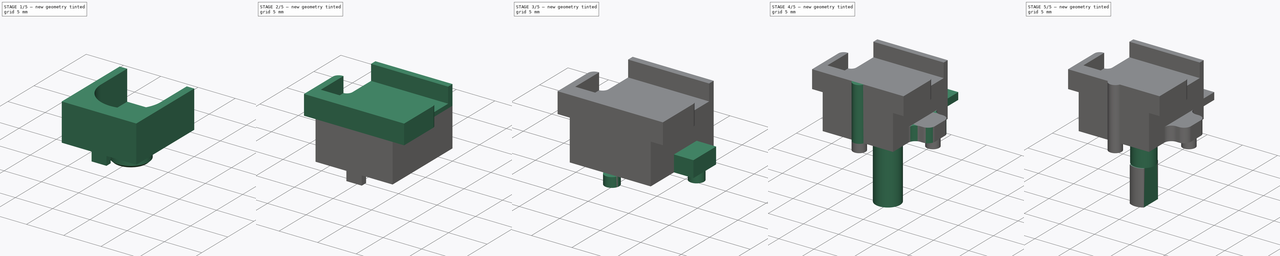
[diagram: build sequence overview — one tinted view per stage of 5, left to right]
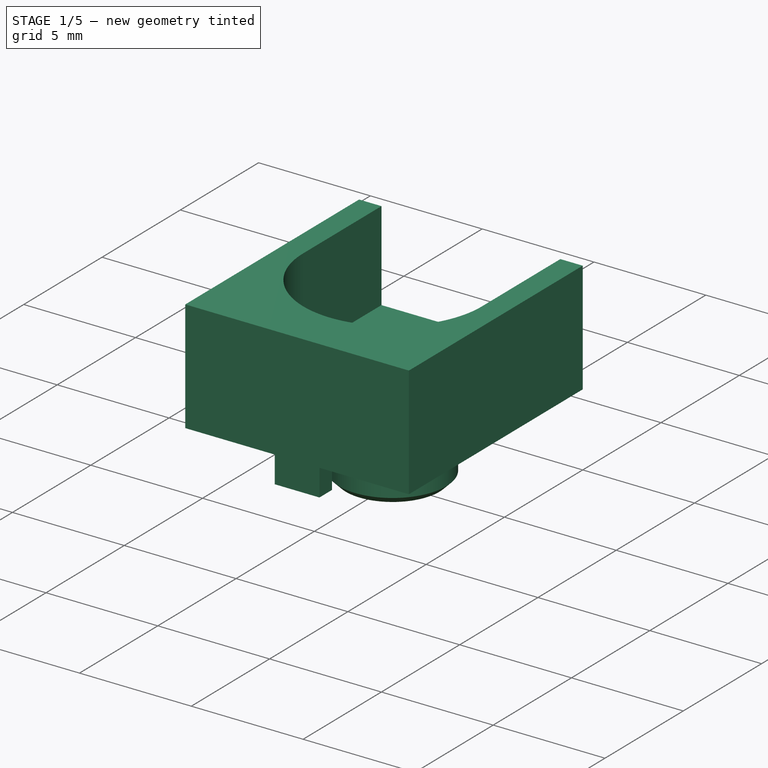
[diagram: stage 1 of 5 — iso view after this stage's code; geometry added in this stage tinted green]
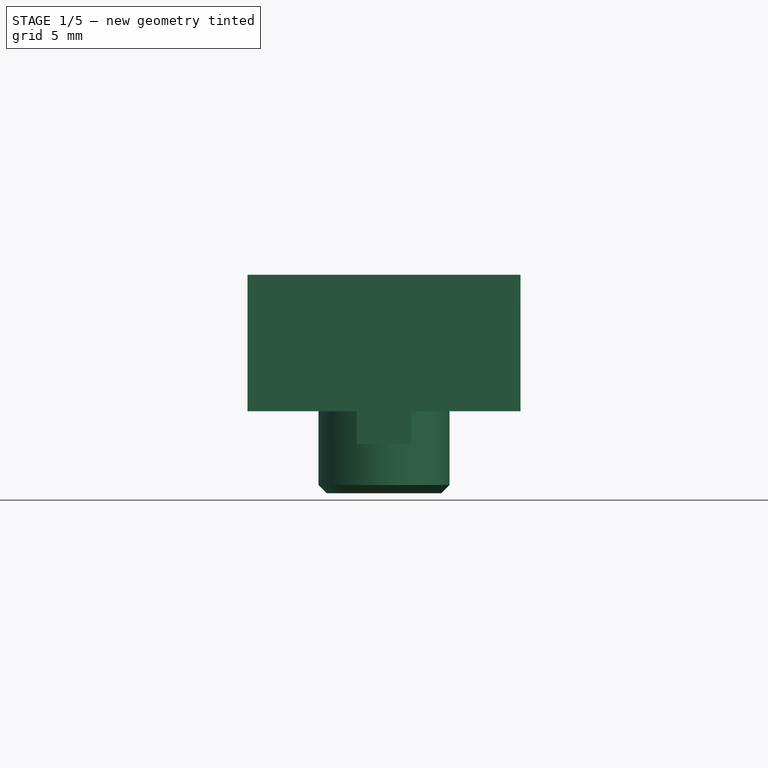
[diagram: stage 1 of 5 — front view after this stage's code; geometry added in this stage tinted green]
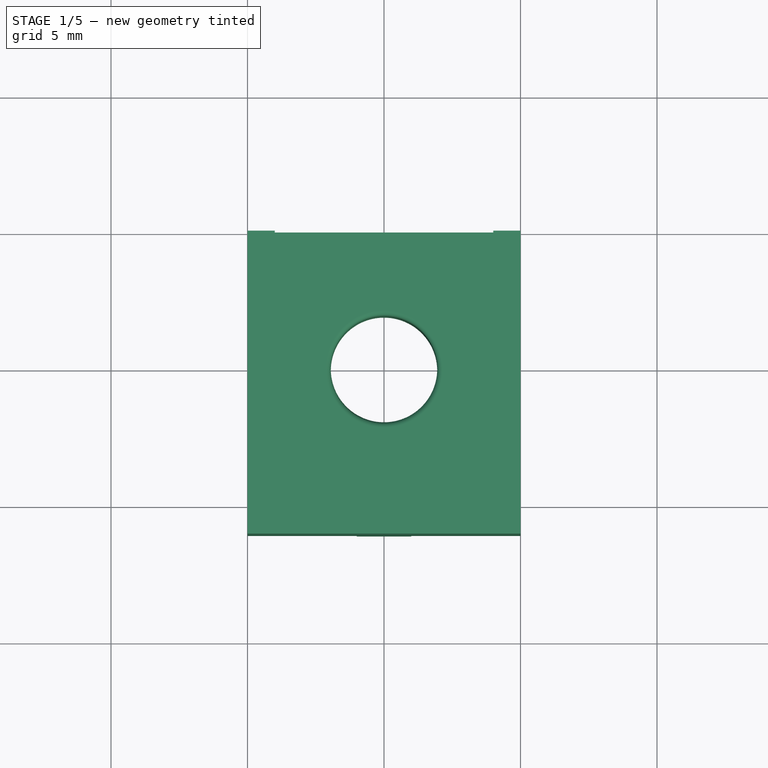
[diagram: stage 1 of 5 — top view after this stage's code; geometry added in this stage tinted green]
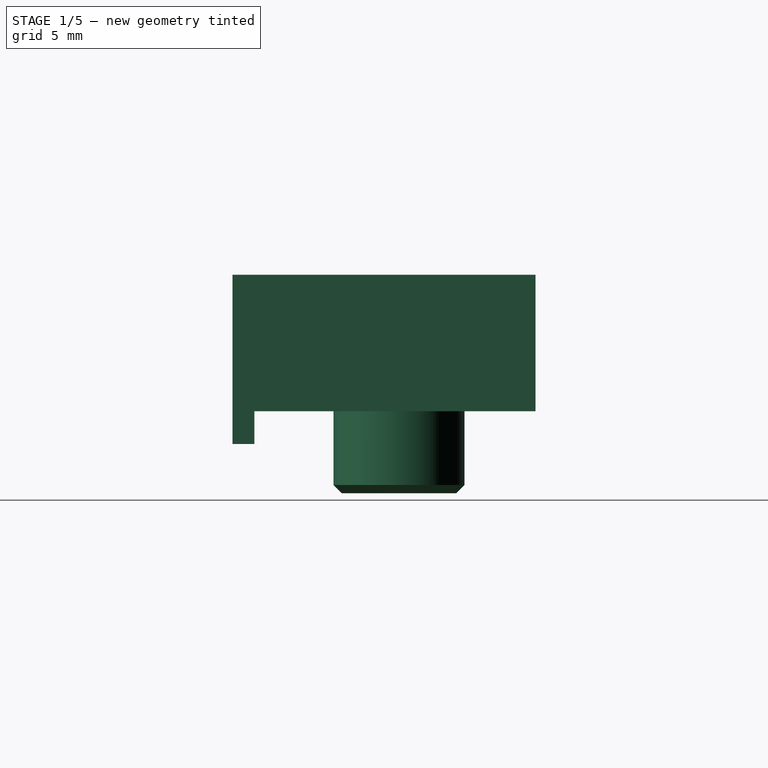
[diagram: stage 1 of 5 — right view after this stage's code; geometry added in this stage tinted green]
FCSTD DOCUMENT  (FreeCAD 0.18.3R)
Label: uMagEnc
License: All rights reserved
LicenseURL: http://en.wikipedia.org/wiki/All_rights_reserved
objects: Sketcher::SketchObject×20, PartDesign::Pad×14, PartDesign::Pocket×7, PartDesign::Mirrored×3, PartDesign::Body×3, PartDesign::Fillet×3, PartDesign::Chamfer×1
note: 72 computed .brp shape members not serialized (recipe doc carries the construction recipe); baked Part::Feature solids carry a one-line shape summary decoded from their .brp

FEATURE [Sketcher::SketchObject] Sketch004
  MapMode = 5
  Support = -> [XY_Plane001]
  expr: Constraints[2] = 5 / 2 - 0.1
  sketch-geometry (2):
    g0: Circle CenterX=0 CenterY=0 CenterZ=0 NormalX=0 NormalY=0 NormalZ=1 AngleXU=0 Radius=1.95
    g1: Circle CenterX=0 CenterY=0 CenterZ=0 NormalX=0 NormalY=0 NormalZ=1 AngleXU=0 Radius=2.4
  constraints (4):
    c: Radius(g0) = 1.95
    c: Coincident(g0,g-1)
    c: Radius(g1) = 2.4
    c: Coincident(g1,g0)
FEATURE [PartDesign::Pad] Pad002
  Length = 4
  Length2 = 100
  Profile = -> Sketch004
  Reversed = true
  Type = 0
  expr: Length = 3 + 1
FEATURE [Sketcher::SketchObject] Sketch005
  ExternalGeometry = -> [Pad002]
  MapMode = 5
  Support = -> [Pad002]
  sketch-geometry (5):
    g0: LineSegment StartX=-5 StartY=5 StartZ=0 EndX=5 EndY=5 EndZ=0
    g1: LineSegment StartX=5 StartY=5 StartZ=0 EndX=5 EndY=-6.1 EndZ=0
    g2: LineSegment StartX=5 StartY=-6.1 StartZ=0 EndX=-5 EndY=-6.1 EndZ=0
    g3: LineSegment StartX=-5 StartY=-6.1 StartZ=0 EndX=-5 EndY=5 EndZ=0
    g4: Circle CenterX=0 CenterY=0 CenterZ=0 NormalX=0 NormalY=0 NormalZ=1 AngleXU=0 Radius=1.95
  constraints (14):
    c: Coincident(g0,g1)
    c: Coincident(g1,g2)
    c: Coincident(g2,g3)
    c: Coincident(g3,g0)
    c: Horizontal(g0)
    c: Horizontal(g2)
    c: Vertical(g1)
    c: Vertical(g3)
    c: DistanceX(g-1,g1) = 5
    c: Distance(g1) = 11.1
    c: Distance(g0) = 10
    c: Coincident(g4,g-1)
    c: Equal(g4,g-3)
    c: DistanceY(g4,g0) = 5
FEATURE [PartDesign::Pad] Pad003
  BaseFeature = -> Pad002
  Length = 1
  Length2 = 100
  Profile = -> Sketch005
  Reversed = true
  Type = 0
FEATURE [Sketcher::SketchObject] Sketch006
  MapMode = 5
  Placement = pos=(0,0,-1) rot=(1,0,0;3.14159rad)
  Support = -> [Pad003]
  sketch-geometry (5):
    g0: LineSegment StartX=-1 StartY=5.3 StartZ=0 EndX=-1 EndY=6.1 EndZ=0
    g1: LineSegment StartX=-1 StartY=6.1 StartZ=0 EndX=1 EndY=6.1 EndZ=0
    g2: LineSegment StartX=1 StartY=6.1 StartZ=0 EndX=1 EndY=5.3 EndZ=0
    g3: LineSegment StartX=1 StartY=5.3 StartZ=0 EndX=0 EndY=5.3 EndZ=0
    g4: LineSegment StartX=0 StartY=5.3 StartZ=0 EndX=-1 EndY=5.3 EndZ=0
  constraints (14):
    c: Coincident(g0,g1)
    c: Coincident(g1,g2)
    c: Horizontal(g1)
    c: Vertical(g0)
    c: Vertical(g2)
    c: Coincident(g4,g3)
    c: Coincident(g4,g0)
    c: Coincident(g3,g2)
    c: PointOnObject(g3,g-2)
    c: Horizontal(g3)
    c: Horizontal(g4)
    c: Equal(g4,g3)
    c: Distance(g1) = 2
    c: Distance(g2) = 0.8
FEATURE [PartDesign::Pad] Pad004
  BaseFeature = -> Pad003
  Length = 1.2
  Length2 = 100
  Profile = -> Sketch006
  Type = 0
  expr: Length = 2.7 - 1.5
FEATURE [PartDesign::Body] Body002
  Group = -> [Sketch007,Pad005]
  Origin = -> Origin002
  Placement = pos=(0,0,0.8) rot=(0,0,1;0rad)
  Tip = -> Pad005
FEATURE [PartDesign::Fillet] Fillet
  Base = -> Pad004 [Edge2]
  BaseFeature = -> Pad004
  Radius = 0.2
FEATURE [PartDesign::Chamfer] Chamfer
  Base = -> Fillet [Edge31]
  BaseFeature = -> Fillet
  Size = 0.3
FEATURE [Sketcher::SketchObject] Sketch008
  ExternalGeometry = -> [Chamfer]
  MapMode = 5
  Support = -> [Chamfer]
  expr: Constraints[9] = 6.2 / 2 + 0.5 + 0.4
  sketch-geometry (8):
    g0: LineSegment StartX=-5 StartY=5 StartZ=0 EndX=-5 EndY=-6.1 EndZ=0
    g1: LineSegment StartX=-5 StartY=-6.1 StartZ=0 EndX=5 EndY=-6.1 EndZ=0
    g2: LineSegment StartX=5 StartY=-6.1 StartZ=0 EndX=5 EndY=5 EndZ=0
    g3: ArcOfCircle CenterX=0 CenterY=0 CenterZ=0 NormalX=0 NormalY=0 NormalZ=1 AngleXU=0 Radius=4 StartAngle=3.14159 EndAngle=6.28319
    g4: LineSegment StartX=-5 StartY=5 StartZ=0 EndX=-4 EndY=5 EndZ=0
    g5: LineSegment StartX=-4 StartY=5 StartZ=0 EndX=-4 EndY=0 EndZ=0
    g6: LineSegment StartX=5 StartY=5 StartZ=0 EndX=4 EndY=5 EndZ=0
    g7: LineSegment StartX=4 StartY=0 StartZ=0 EndX=4 EndY=5 EndZ=0
  constraints (20):
    c: Coincident(g1,g0)
    c: Coincident(g2,g1)
    c: Coincident(g2,g-3)
    c: Coincident(g1,g-3)
    c: Coincident(g0,g-4)
    c: Coincident(g-4,g0)
    c: Coincident(g3,g-1)
    c: PointOnObject(g3,g-1)
    c: PointOnObject(g3,g-1)
    c: Radius(g3) = 4
    c: Coincident(g4,g0)
    c: Coincident(g5,g4)
    c: Coincident(g5,g3)
    c: Coincident(g6,g2)
    c: Coincident(g7,g3)
    c: Coincident(g7,g6)
    c: Horizontal(g6)
    c: Horizontal(g4)
    c: Vertical(g5)
    c: Vertical(g7)
FEATURE [PartDesign::Pad] Pad006
  BaseFeature = -> Chamfer
  Length = 4
  Length2 = 100
  Profile = -> Sketch008
  Type = 0
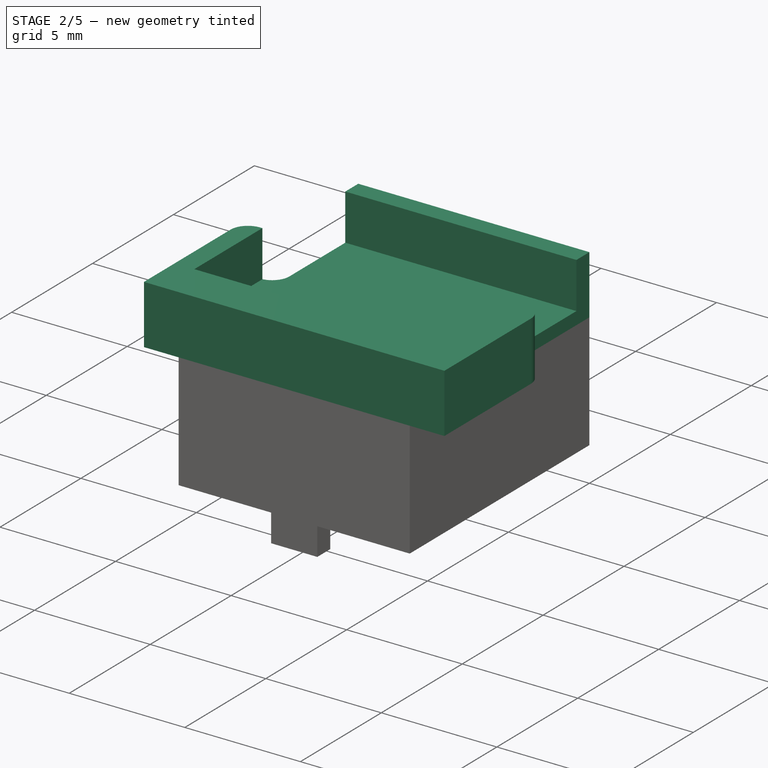
[diagram: stage 2 of 5 — iso view after this stage's code; geometry added in this stage tinted green]
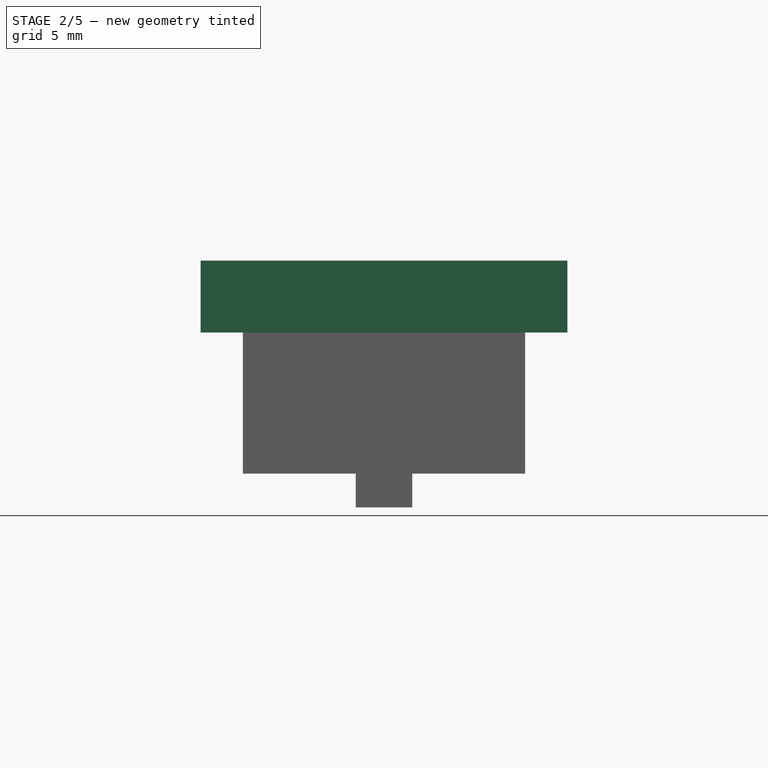
[diagram: stage 2 of 5 — front view after this stage's code; geometry added in this stage tinted green]
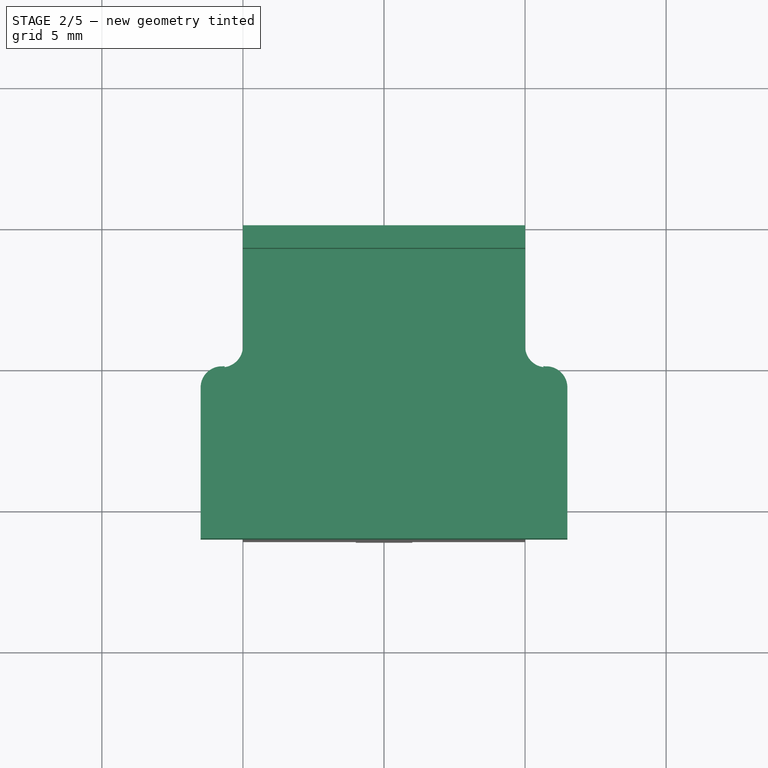
[diagram: stage 2 of 5 — top view after this stage's code; geometry added in this stage tinted green]
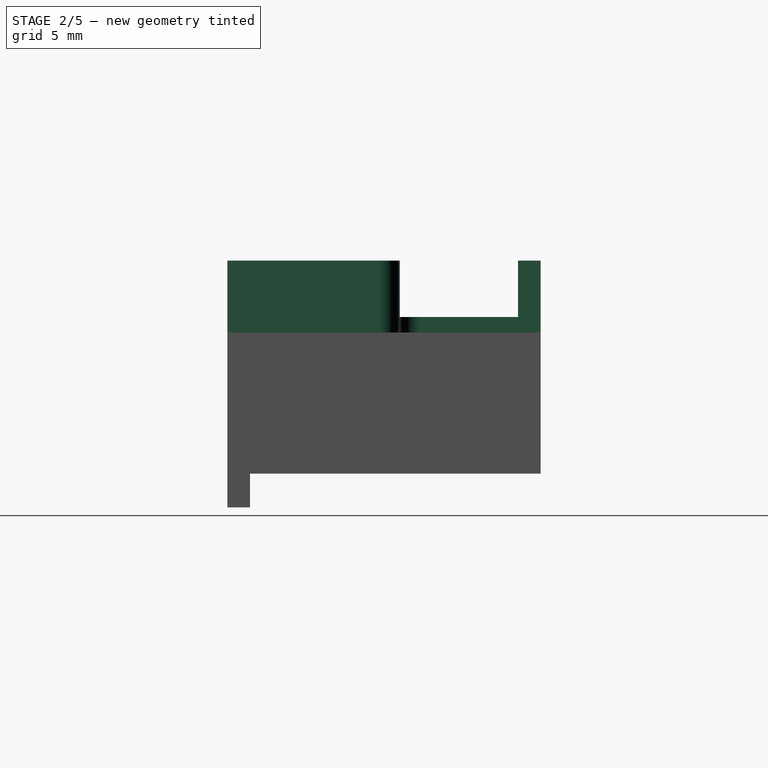
[diagram: stage 2 of 5 — right view after this stage's code; geometry added in this stage tinted green]
FEATURE [Sketcher::SketchObject] Sketch009
  ExternalGeometry = -> [Pad006]
  MapMode = 5
  Placement = pos=(0,0,4) rot=(0,0,1;0rad)
  Support = -> [Pad006]
  sketch-geometry (17):
    g0: LineSegment StartX=-5 StartY=5 StartZ=0 EndX=5 EndY=5 EndZ=0
    g1: LineSegment [constr] StartX=5 StartY=5 StartZ=0 EndX=5 EndY=-6.1 EndZ=0
    g2: LineSegment [constr] StartX=5 StartY=-6.1 StartZ=0 EndX=-5 EndY=-6.1 EndZ=0
    g3: LineSegment [constr] StartX=-5 StartY=-6.1 StartZ=0 EndX=-5 EndY=5 EndZ=0
    g4: LineSegment StartX=-5 StartY=5 StartZ=0 EndX=-5 EndY=0.75 EndZ=0
    g5: LineSegment StartX=5 StartY=5 StartZ=0 EndX=5 EndY=0.75 EndZ=0
    g6: ArcOfCircle CenterX=-5.75 CenterY=0.75 CenterZ=0 NormalX=0 NormalY=0 NormalZ=1 AngleXU=0 Radius=0.75 StartAngle=4.71239 EndAngle=6.28319
    g7: ArcOfCircle CenterX=5.75 CenterY=0.75 CenterZ=0 NormalX=0 NormalY=0 NormalZ=1 AngleXU=0 Radius=0.75 StartAngle=3.14159 EndAngle=4.71239
    g8: ArcOfCircle CenterX=-5.75 CenterY=-0.75 CenterZ=0 NormalX=0 NormalY=0 NormalZ=1 AngleXU=0 Radius=0.75 StartAngle=1.5708 EndAngle=3.14159
    g9: ArcOfCircle CenterX=5.75 CenterY=-0.75 CenterZ=0 NormalX=0 NormalY=0 NormalZ=1 AngleXU=0 Radius=0.75 StartAngle=1e-16 EndAngle=1.5708
    g10: LineSegment [constr] StartX=-5.75 StartY=0.75 StartZ=0 EndX=-5.75 EndY=0 EndZ=0
    g11: LineSegment [constr] StartX=-5.75 StartY=0 StartZ=0 EndX=-5.75 EndY=-0.75 EndZ=0
    g12: LineSegment [constr] StartX=5.75 StartY=0.75 StartZ=0 EndX=5.75 EndY=2e-16 EndZ=0
    g13: LineSegment [constr] StartX=5.75 StartY=-0.75 StartZ=0 EndX=5.75 EndY=2e-16 EndZ=0
    g14: LineSegment StartX=-6.5 StartY=-0.75 StartZ=0 EndX=-6.5 EndY=-6.1 EndZ=0
    g15: LineSegment StartX=6.5 StartY=-0.75 StartZ=0 EndX=6.5 EndY=-6.1 EndZ=0
    g16: LineSegment StartX=-6.5 StartY=-6.1 StartZ=0 EndX=6.5 EndY=-6.1 EndZ=0
  constraints (44):
    c: Coincident(g0,g1)
    c: Coincident(g1,g2)
    c: Coincident(g2,g3)
    c: Coincident(g3,g0)
    c: Horizontal(g0)
    c: Horizontal(g2)
    c: Vertical(g1)
    c: Vertical(g3)
    c: Coincident(g2,g-3)
    c: Coincident(g0,g-4)
    c: Coincident(g4,g0)
    c: Vertical(g4)
    c: Coincident(g5,g0)
    c: Vertical(g5)
    c: Tangent(g6,g4) = 1.5708
    c: Tangent(g7,g5) = -1.5708
    c: Coincident(g8,g6)
    c: Coincident(g10,g6)
    c: Coincident(g11,g8)
    c: Coincident(g11,g6)
    c: Vertical(g11)
    c: Vertical(g10)
    c: Equal(g10,g11)
    c: Coincident(g10,g6)
    c: Coincident(g12,g7)
    c: Coincident(g12,g7)
    c: Vertical(g12)
    c: Coincident(g13,g9)
    c: Coincident(g13,g7)
    c: Vertical(g13)
    c: Coincident(g9,g7)
    c: Equal(g12,g13)
    c: Equal(g5,g4)
    c: Equal(g12,g10)
    c: Vertical(g14)
    c: Vertical(g15)
    c: Horizontal(g16)
    c: Coincident(g16,g14)
    c: Coincident(g15,g16)
    c: PointOnObject(g1,g16)
    c: Tangent(g14,g8) = -1.5708
    c: Tangent(g9,g15) = 1.5708
    c: DistanceX(g1,g15) = 1.5
    c: PointOnObject(g6,g-1)
FEATURE [PartDesign::Pad] Pad007
  BaseFeature = -> Pad006
  Length = 2.55
  Length2 = 100
  Profile = -> Sketch009
  Type = 0
FEATURE [Sketcher::SketchObject] Sketch010
  ExternalGeometry = -> [Pad007]
  MapMode = 5
  Support = -> [Pad007]
  expr: Constraints[3] = 3.5 / 2 + 0.1
  sketch-geometry (4):
    g0: ArcOfCircle CenterX=0 CenterY=0 CenterZ=0 NormalX=0 NormalY=0 NormalZ=1 AngleXU=0 Radius=1.85 StartAngle=3.14159 EndAngle=6.28319
    g1: LineSegment StartX=1.85 StartY=-5e-16 StartZ=0 EndX=1.85 EndY=5 EndZ=0
    g2: LineSegment StartX=-1.85 StartY=2e-16 StartZ=0 EndX=-1.85 EndY=5 EndZ=0
    g3: LineSegment StartX=1.85 StartY=5 StartZ=0 EndX=-1.85 EndY=5 EndZ=0
  constraints (12):
    c: Coincident(g0,g-1)
    c: PointOnObject(g0,g-1)
    c: PointOnObject(g0,g-1)
    c: Radius(g0) = 1.85
    c: Coincident(g1,g0)
    c: PointOnObject(g1,g-3)
    c: Vertical(g1)
    c: Coincident(g2,g0)
    c: PointOnObject(g2,g-3)
    c: Vertical(g2)
    c: Coincident(g3,g1)
    c: Coincident(g2,g3)
FEATURE [PartDesign::Pocket] Pocket002
  BaseFeature = -> Pad007
  Length = 5
  Length2 = 100
  Profile = -> Sketch010
  Type = 1
FEATURE [PartDesign::Body] Body
  Group = -> [Sketch,Pad,Sketch001,Pocket,Mirrored,Sketch002,Pad001,Sketch003,Pocket001,Sketch012,Pocket004]
  Origin = -> Origin
  Tip = -> Pocket004
FEATURE [PartDesign::Pocket] Pocket005
  BaseFeature = -> Pocket002
  Length = 2
  Length2 = 100
  Profile = -> Sketch011
  Type = 0
  expr: Length = 1.2 + 0.8
FEATURE [Sketcher::SketchObject] Sketch013
  ExternalGeometry = -> [Pocket005]
  MapMode = 5
  Support = -> [Pocket005]
  sketch-geometry (1):
    g0: Circle CenterX=0 CenterY=0 CenterZ=0 NormalX=0 NormalY=0 NormalZ=1 AngleXU=0 Radius=4
  constraints (2):
    c: Coincident(g0,g-1)
    c: Equal(g0,g-3)
FEATURE [PartDesign::Pocket] Pocket006
  BaseFeature = -> Pocket005
  Length = 5
  Length2 = 100
  Profile = -> Sketch013
  Type = 1
FEATURE [Sketcher::SketchObject] Sketch014
  ExternalGeometry = -> [Pocket006]
  MapMode = 5
  Placement = pos=(0,0,-1) rot=(1,0,0;3.14159rad)
  Support = -> [Pocket006]
  sketch-geometry (4):
    g0: ArcOfCircle CenterX=0 CenterY=0 CenterZ=0 NormalX=0 NormalY=0 NormalZ=1 AngleXU=0 Radius=4 StartAngle=3.14159 EndAngle=6.28319
    g1: LineSegment StartX=4 StartY=1e-15 StartZ=0 EndX=4 EndY=-5 EndZ=0
    g2: LineSegment StartX=4 StartY=-5 StartZ=0 EndX=-4 EndY=-5 EndZ=0
    g3: LineSegment StartX=-4 StartY=-5 StartZ=0 EndX=-4 EndY=0 EndZ=0
  constraints (11):
    c: Coincident(g0,g-1)
    c: Coincident(g0,g-3)
    c: PointOnObject(g0,g-1)
    c: Coincident(g1,g2)
    c: Coincident(g2,g3)
    c: Horizontal(g2)
    c: Vertical(g1)
    c: Vertical(g3)
    c: PointOnObject(g-4,g2)
    c: Coincident(g1,g0)
    c: Coincident(g3,g0)
FEATURE [PartDesign::Pad] Pad008
  BaseFeature = -> Pocket006
  Length = 10
  Length2 = 100
  Profile = -> Sketch014
  Reversed = true
  Type = 3
  UpToFace = -> Pocket006 [Face19]
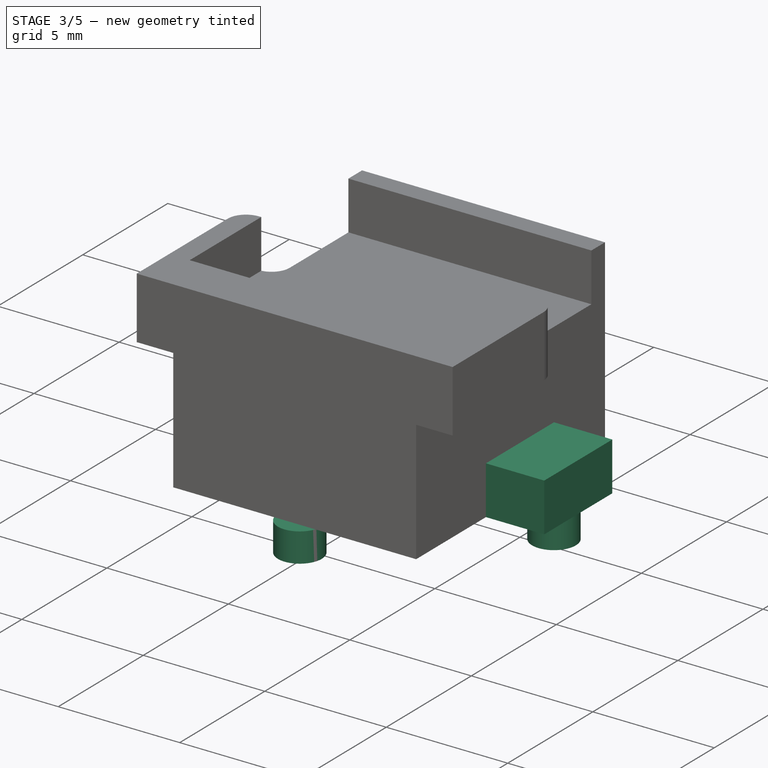
[diagram: stage 3 of 5 — iso view after this stage's code; geometry added in this stage tinted green]
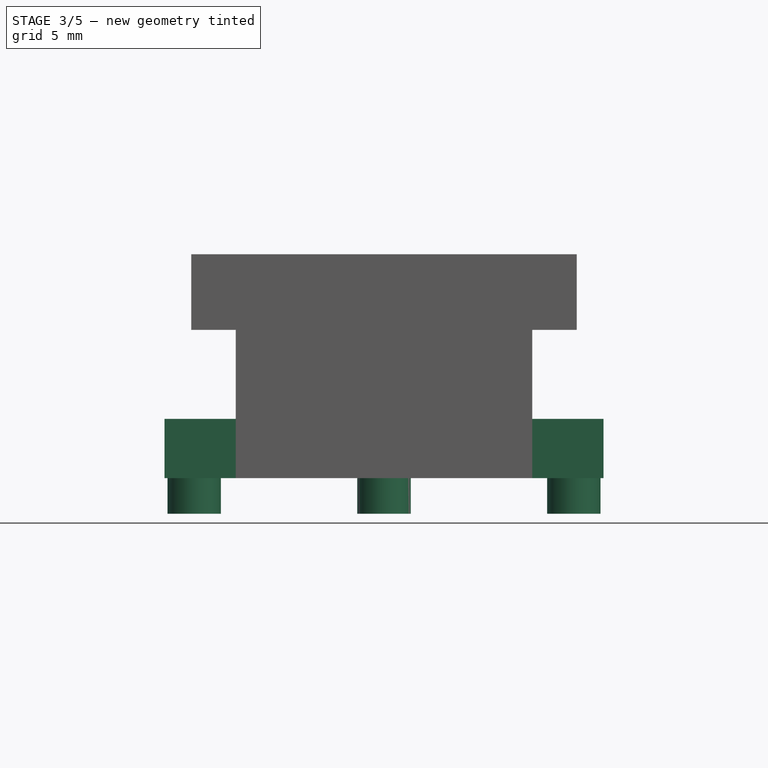
[diagram: stage 3 of 5 — front view after this stage's code; geometry added in this stage tinted green]
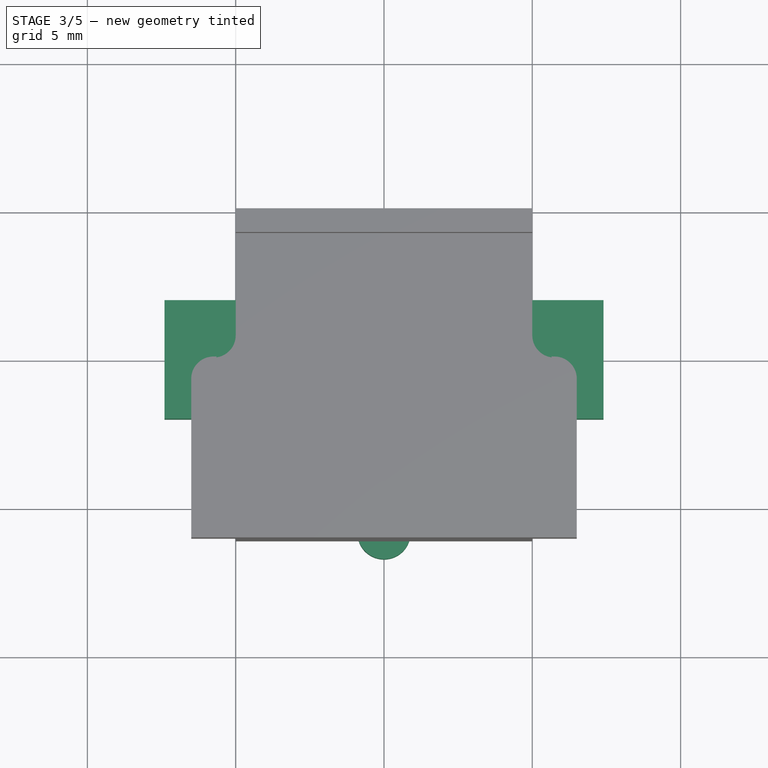
[diagram: stage 3 of 5 — top view after this stage's code; geometry added in this stage tinted green]
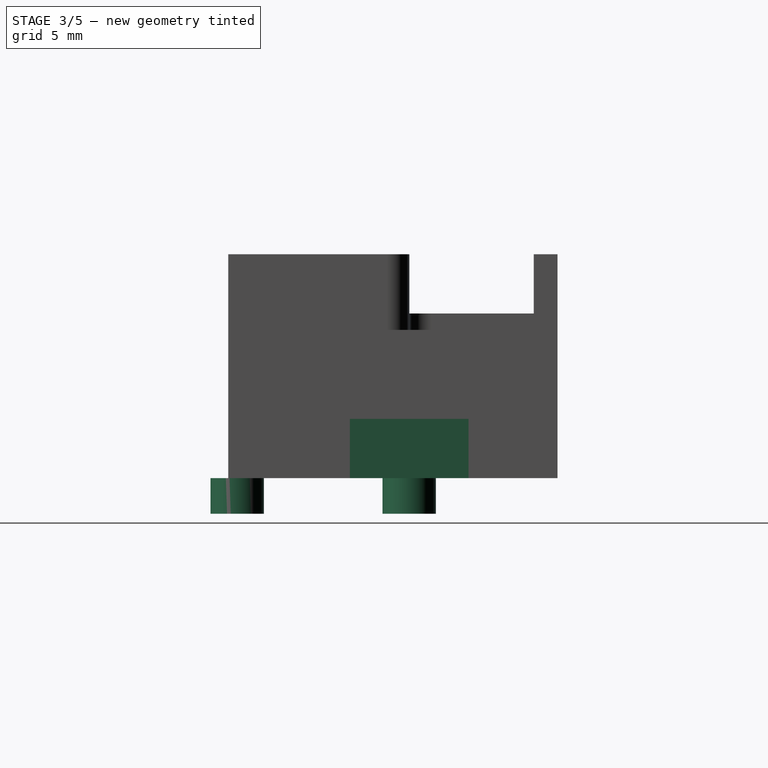
[diagram: stage 3 of 5 — right view after this stage's code; geometry added in this stage tinted green]
FEATURE [Sketcher::SketchObject] Sketch015
  MapMode = 5
  Placement = pos=(0,0,-1) rot=(1,0,0;3.14159rad)
  Support = -> [Pad008]
  expr: Constraints[2] = 5 + 1.6 / 2
  expr: Constraints[1] = 1.8 / 2
  sketch-geometry (1):
    g0: Circle CenterX=0 CenterY=5.8 CenterZ=0 NormalX=0 NormalY=0 NormalZ=1 AngleXU=0 Radius=0.9
  constraints (3):
    c: PointOnObject(g0,g-2)
    c: Radius(g0) = 0.9
    c: Distance(g-1,g0) = 5.8
FEATURE [PartDesign::Pad] Pad009
  BaseFeature = -> Pad008
  Length = 1.2
  Length2 = 100
  Profile = -> Sketch015
  Type = 0
FEATURE [Sketcher::SketchObject] Sketch016
  ExternalGeometry = -> [Pad009]
  MapMode = 5
  Placement = pos=(0,0,-1) rot=(1,0,0;3.14159rad)
  Support = -> [Pad009]
  sketch-geometry (2):
    g0: Circle CenterX=0 CenterY=5.8 CenterZ=0 NormalX=0 NormalY=0 NormalZ=1 AngleXU=0 Radius=0.9
    g1: Circle CenterX=0 CenterY=5.8 CenterZ=0 NormalX=0 NormalY=0 NormalZ=1 AngleXU=0 Radius=2
  constraints (4):
    c: Coincident(g0,g-3)
    c: Equal(g-3,g0)
    c: Coincident(g1,g0)
    c: Radius(g1) = 2
FEATURE [PartDesign::Pocket] Pocket007
  BaseFeature = -> Pad009
  Length = 5
  Length2 = 100
  Profile = -> Sketch016
  Reversed = true
  Type = 1
FEATURE [Sketcher::SketchObject] Sketch017
  ExternalGeometry = -> [Pocket007]
  MapMode = 5
  Placement = pos=(0,0,-1) rot=(1,0,0;3.14159rad)
  Support = -> [Pocket007]
  expr: Constraints[14] = 10.8 / 2 + 2
  sketch-geometry (5):
    g0: LineSegment StartX=5 StartY=2 StartZ=0 EndX=7.4 EndY=2 EndZ=0
    g1: LineSegment StartX=7.4 StartY=2 StartZ=0 EndX=7.4 EndY=-2 EndZ=0
    g2: LineSegment StartX=7.4 StartY=-2 StartZ=0 EndX=5 EndY=-2 EndZ=0
    g3: LineSegment StartX=5 StartY=2 StartZ=0 EndX=5 EndY=0 EndZ=0
    g4: LineSegment StartX=5 StartY=0 StartZ=0 EndX=5 EndY=-2 EndZ=0
  constraints (15):
    c: Coincident(g2,g4)
    c: Coincident(g3,g4)
    c: Coincident(g0,g3)
    c: Coincident(g1,g2)
    c: Coincident(g0,g1)
    c: Horizontal(g0)
    c: Horizontal(g2)
    c: Vertical(g1)
    c: Vertical(g3)
    c: Vertical(g4)
    c: Equal(g3,g4)
    c: PointOnObject(g3,g-1)
    c: PointOnObject(g3,g-3)
    c: Distance(g1) = 4
    c: DistanceX(g-1,g0) = 7.4
FEATURE [PartDesign::Pad] Pad010
  BaseFeature = -> Pocket007
  Length = 2
  Length2 = 100
  Profile = -> Sketch017
  Reversed = true
  Type = 0
FEATURE [Sketcher::SketchObject] Sketch018
  MapMode = 5
  Placement = pos=(0,0,-1) rot=(1,0,0;3.14159rad)
  Support = -> [Pad010]
  expr: Constraints[2] = 1.8 / 2
  expr: Constraints[1] = 10.8 / 2 + 2 / 2
  sketch-geometry (1):
    g0: Circle CenterX=6.4 CenterY=0 CenterZ=0 NormalX=0 NormalY=0 NormalZ=1 AngleXU=0 Radius=0.9
  constraints (3):
    c: PointOnObject(g0,g-1)
    c: Distance(g-1,g0) = 6.4
    c: Radius(g0) = 0.9
FEATURE [PartDesign::Pad] Pad011
  BaseFeature = -> Pad010
  Length = 1.2
  Length2 = 100
  Profile = -> Sketch018
  Type = 0
FEATURE [PartDesign::Mirrored] Mirrored001
  BaseFeature = -> Pad011
  MirrorPlane = -> YZ_Plane001
  Originals = -> [Pad010]
FEATURE [PartDesign::Mirrored] Mirrored002
  BaseFeature = -> Mirrored001
  MirrorPlane = -> YZ_Plane001
  Originals = -> [Pad011]
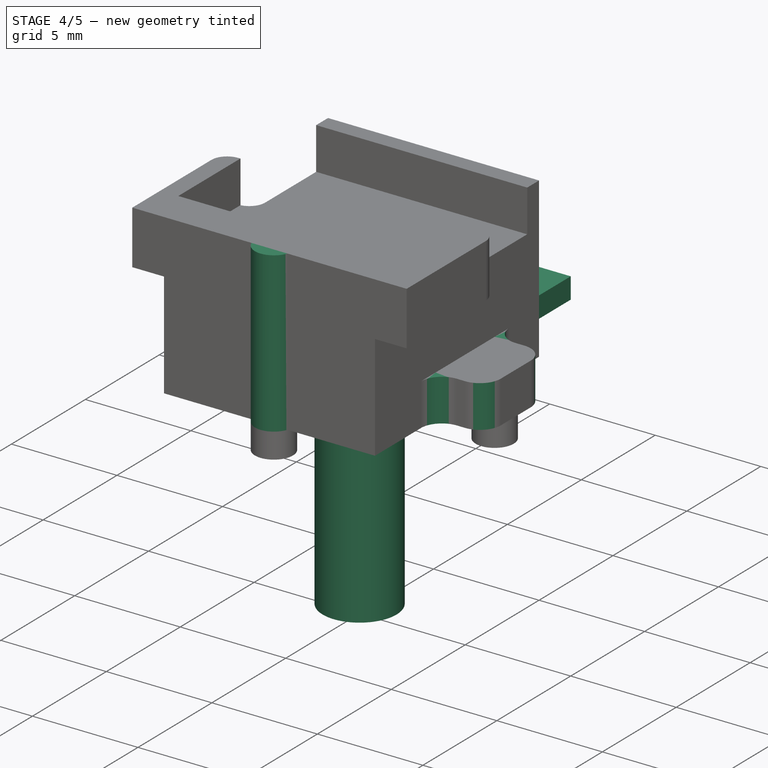
[diagram: stage 4 of 5 — iso view after this stage's code; geometry added in this stage tinted green]
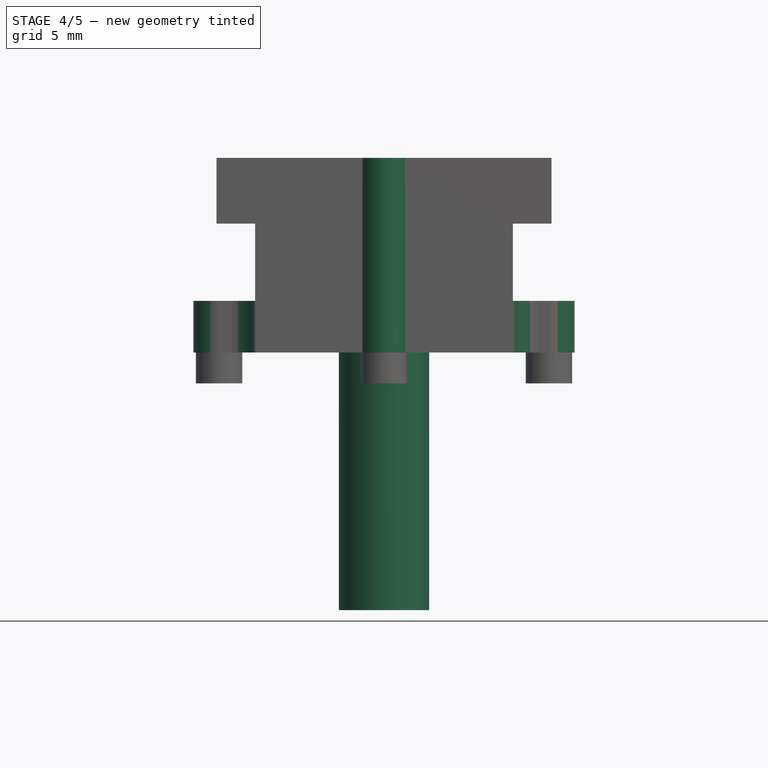
[diagram: stage 4 of 5 — front view after this stage's code; geometry added in this stage tinted green]
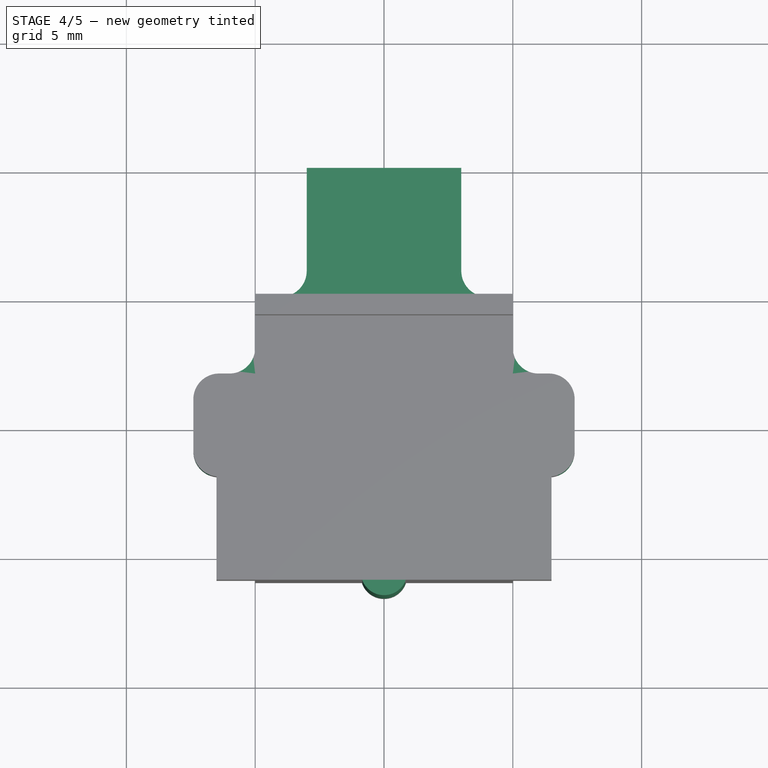
[diagram: stage 4 of 5 — top view after this stage's code; geometry added in this stage tinted green]
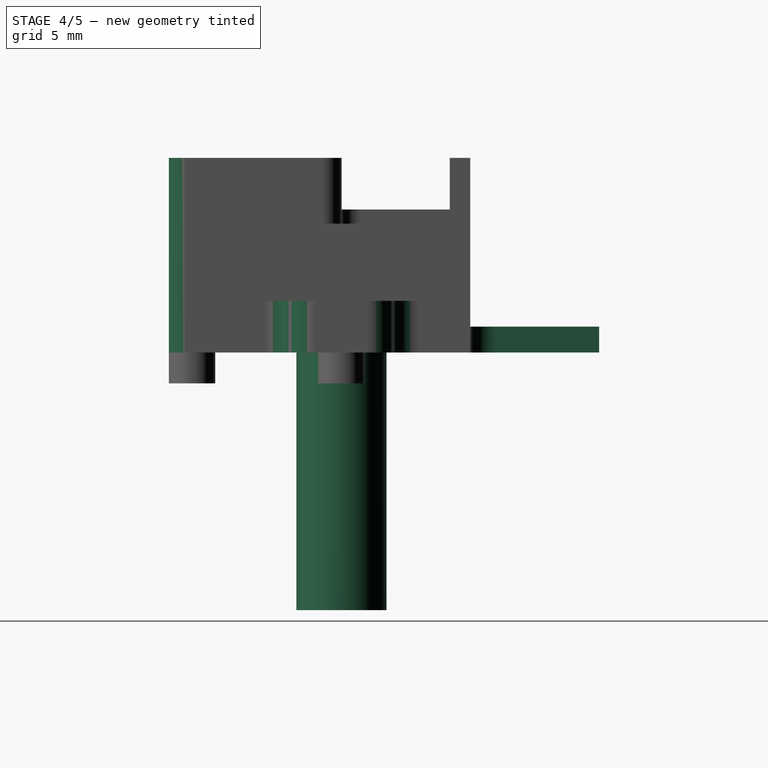
[diagram: stage 4 of 5 — right view after this stage's code; geometry added in this stage tinted green]
FEATURE [Sketcher::SketchObject] Sketch
  MapMode = 5
  Support = -> [XY_Plane]
  expr: Constraints[0] = 3.5 / 2
  sketch-geometry (1):
    g0: Circle CenterX=0 CenterY=0 CenterZ=0 NormalX=0 NormalY=0 NormalZ=1 AngleXU=0 Radius=1.75
  constraints (2):
    c: Radius(g0) = 1.75
    c: Coincident(g0,g-1)
FEATURE [PartDesign::Pad] Pad
  Length = 11
  Length2 = 100
  Profile = -> Sketch
  Reversed = true
  Type = 0
FEATURE [Sketcher::SketchObject] Sketch019
  ExternalGeometry = -> [Mirrored002]
  MapMode = 5
  Placement = pos=(0,5,0) rot=(0,0.707107,0.707107;3.14159rad)
  Support = -> [Mirrored002]
  sketch-geometry (5):
    g0: LineSegment StartX=3 StartY=0 StartZ=0 EndX=3 EndY=-1 EndZ=0
    g1: LineSegment StartX=3 StartY=-1 StartZ=0 EndX=-3 EndY=-1 EndZ=0
    g2: LineSegment StartX=-3 StartY=-1 StartZ=0 EndX=-3 EndY=0 EndZ=0
    g3: LineSegment StartX=0 StartY=0 StartZ=0 EndX=-3 EndY=0 EndZ=0
    g4: LineSegment StartX=0 StartY=0 StartZ=0 EndX=3 EndY=0 EndZ=0
  constraints (14):
    c: Coincident(g0,g1)
    c: Coincident(g1,g2)
    c: Horizontal(g1)
    c: Vertical(g0)
    c: Vertical(g2)
    c: PointOnObject(g2,g-1)
    c: Coincident(g3,g-1)
    c: Coincident(g3,g2)
    c: Coincident(g4,g3)
    c: Coincident(g4,g0)
    c: Equal(g4,g3)
    c: Horizontal(g4)
    c: PointOnObject(g0,g-3)
    c: Distance(g1) = 6
FEATURE [PartDesign::Pad] Pad012
  BaseFeature = -> Mirrored002
  Length = 5
  Length2 = 100
  Profile = -> Sketch019
  Type = 0
FEATURE [PartDesign::Pad] Pad013
  BaseFeature = -> Pad012
  Length = 2
  Length2 = 100
  Profile = -> Sketch015
  Reversed = true
  Type = 3
  UpToFace = -> Pad012 [Face64]
FEATURE [PartDesign::Fillet] Fillet001
  Base = -> Pad013 [Edge82,Edge86,Edge29,Edge73,Edge112,Edge169,Edge164,Edge163]
  BaseFeature = -> Pad013
  Radius = 1
FEATURE [PartDesign::Fillet] Fillet002
  Base = -> Fillet001 [Edge117,Edge54]
  BaseFeature = -> Fillet001
  Radius = 1
FEATURE [PartDesign::Body] Body001
  Group = -> [Sketch004,Pad002,Sketch005,Pad003,Sketch006,Pad004,Fillet,Chamfer,Sketch008,Pad006,Sketch009,Pad007,Sketch010,Pocket002,Sketch011,Pocket005,Sketch013,Pocket006,Sketch014,Pad008,Sketch015,Pad009,Sketch016,Pocket007,Sketch017,Pad010,Sketch018,Pad011,Mirrored001,Mirrored002,Sketch019,Pad012,Pad013,Fillet001,Fillet002]
  Origin = -> Origin001
  Placement = pos=(0,0,-0.1) rot=(0,0,1;0rad)
  Tip = -> Fillet002
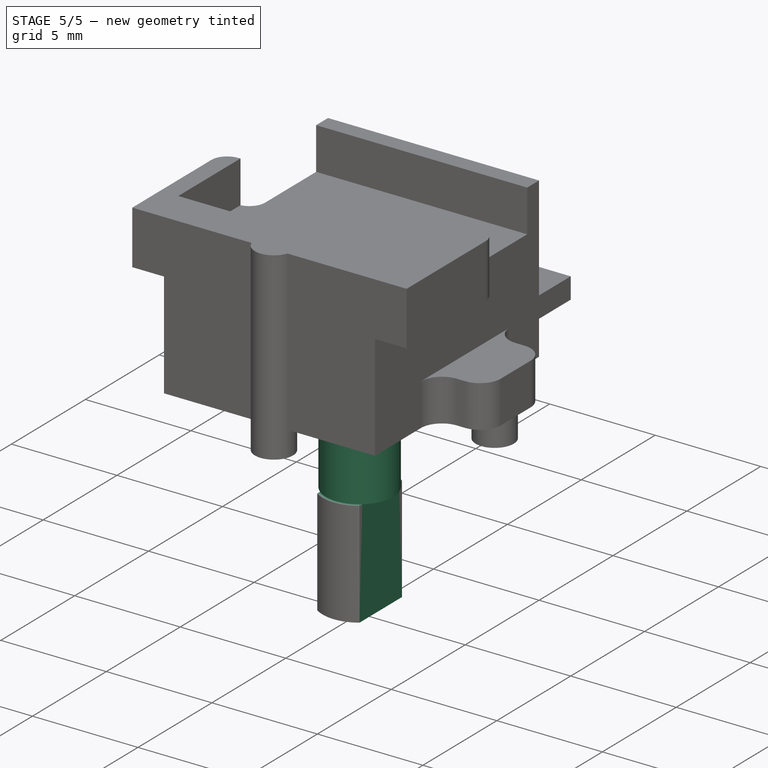
[diagram: stage 5 of 5 — iso view after this stage's code; geometry added in this stage tinted green]
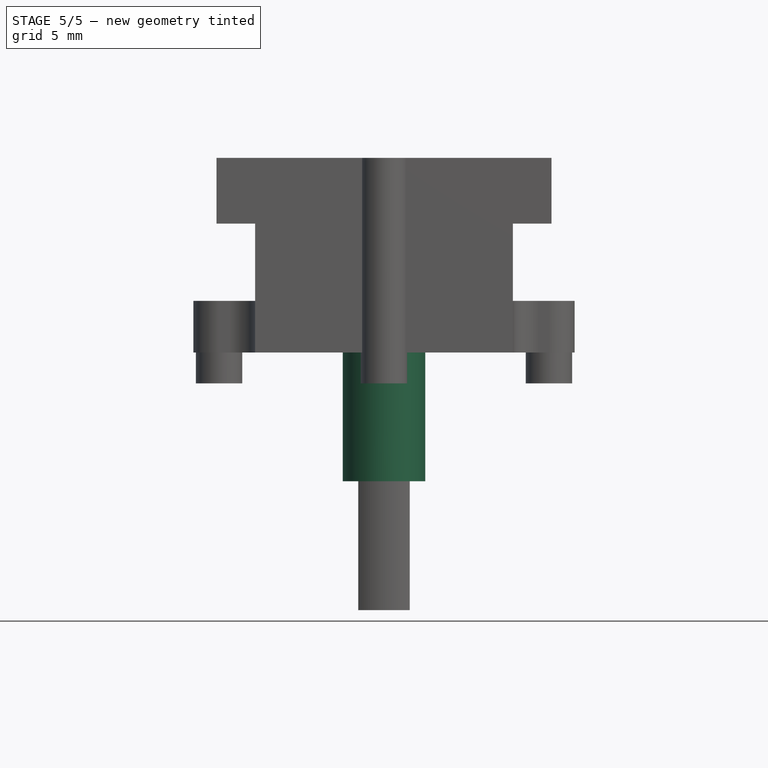
[diagram: stage 5 of 5 — front view after this stage's code; geometry added in this stage tinted green]
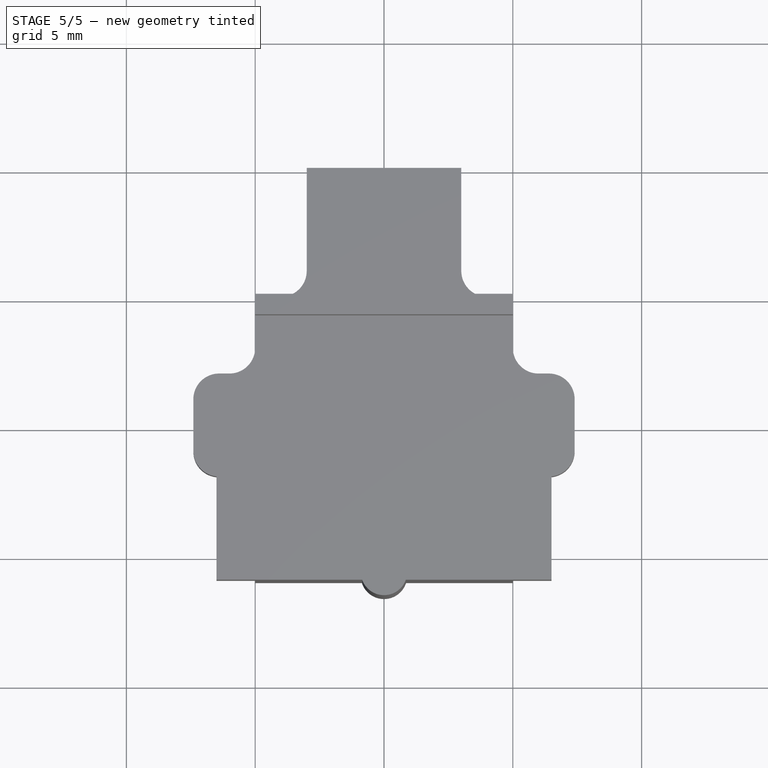
[diagram: stage 5 of 5 — top view after this stage's code; geometry added in this stage tinted green]
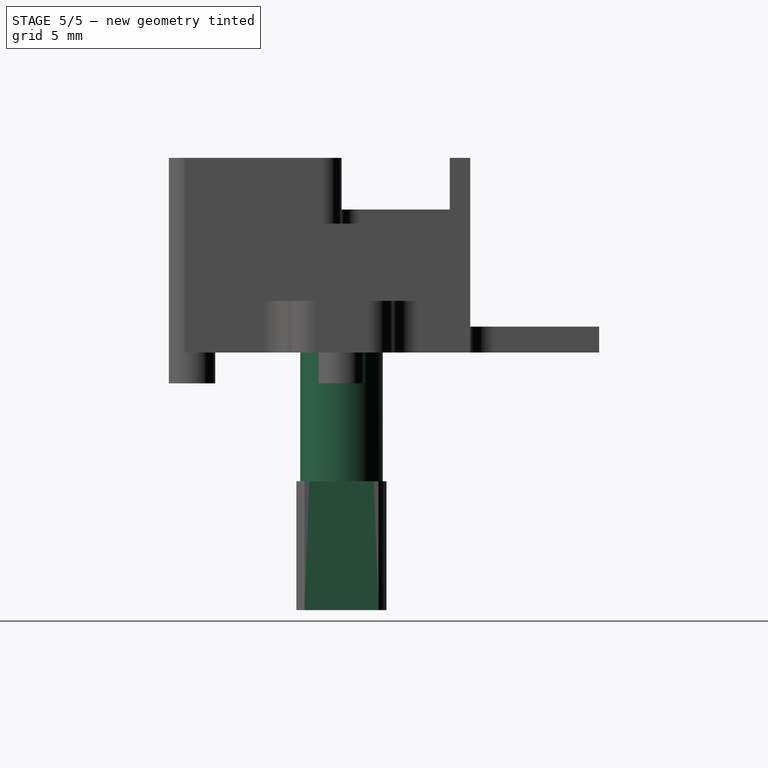
[diagram: stage 5 of 5 — right view after this stage's code; geometry added in this stage tinted green]
FEATURE [Sketcher::SketchObject] Sketch001
  MapMode = 5
  Placement = pos=(0,0,-11) rot=(1,0,0;3.14159rad)
  Support = -> [Pad]
  sketch-geometry (6):
    g0: LineSegment StartX=1 StartY=2 StartZ=0 EndX=4 EndY=2 EndZ=0
    g1: LineSegment StartX=4 StartY=2 StartZ=0 EndX=4 EndY=-2 EndZ=0
    g2: LineSegment StartX=4 StartY=-2 StartZ=0 EndX=1 EndY=-2 EndZ=0
    g3: LineSegment StartX=1 StartY=2 StartZ=0 EndX=1 EndY=0 EndZ=0
    g4: LineSegment StartX=1 StartY=-2 StartZ=0 EndX=1 EndY=0 EndZ=0
    g5: LineSegment [constr] StartX=0 StartY=0 StartZ=0 EndX=1 EndY=0 EndZ=0
  constraints (17):
    c: Coincident(g0,g1)
    c: Coincident(g1,g2)
    c: Horizontal(g0)
    c: Horizontal(g2)
    c: Vertical(g1)
    c: Coincident(g3,g4)
    c: Vertical(g4)
    c: Vertical(g3)
    c: Equal(g3,g4)
    c: Coincident(g5,g3)
    c: Coincident(g-1,g5)
    c: Horizontal(g5)
    c: Coincident(g3,g0)
    c: Coincident(g4,g2)
    c: Distance(g5) = 1
    c: Distance(g0) = 3
    c: Distance(g1) = 4
FEATURE [PartDesign::Pocket] Pocket
  BaseFeature = -> Pad
  Length = 5
  Length2 = 100
  Profile = -> Sketch001
  Type = 0
FEATURE [PartDesign::Mirrored] Mirrored
  BaseFeature = -> Pocket
  MirrorPlane = -> YZ_Plane
  Originals = -> [Pocket]
FEATURE [Sketcher::SketchObject] Sketch002
  MapMode = 5
  Support = -> [Mirrored]
  expr: Constraints[1] = 6.2 / 2 + 0.5
  sketch-geometry (1):
    g0: Circle CenterX=0 CenterY=0 CenterZ=0 NormalX=0 NormalY=0 NormalZ=1 AngleXU=0 Radius=3.6
  constraints (2):
    c: Coincident(g0,g-1)
    c: Radius(g0) = 3.6
FEATURE [PartDesign::Pad] Pad001
  BaseFeature = -> Mirrored
  Length = 3
  Length2 = 100
  Profile = -> Sketch002
  Type = 0
  expr: Length = 0.15 * 20
FEATURE [Sketcher::SketchObject] Sketch003
  MapMode = 5
  Placement = pos=(0,0,3) rot=(0,0,1;0rad)
  Support = -> [Pad001]
  expr: Constraints[1] = 6.2 / 2
  sketch-geometry (1):
    g0: Circle CenterX=0 CenterY=0 CenterZ=0 NormalX=0 NormalY=0 NormalZ=1 AngleXU=0 Radius=3.1
  constraints (2):
    c: Coincident(g0,g-1)
    c: Radius(g0) = 3.1
FEATURE [PartDesign::Pocket] Pocket001
  BaseFeature = -> Pad001
  Length = 2.25
  Length2 = 100
  Profile = -> Sketch003
  Type = 0
  expr: Length = 0.15 * 15
FEATURE [Sketcher::SketchObject] Sketch007
  MapMode = 5
  Support = -> [XY_Plane002]
  sketch-geometry (1):
    g0: Circle CenterX=0 CenterY=0 CenterZ=0 NormalX=0 NormalY=0 NormalZ=1 AngleXU=0 Radius=3
  constraints (2):
    c: Radius(g0) = 3
    c: Coincident(g0,g-1)
FEATURE [PartDesign::Pad] Pad005
  Length = 2.5
  Length2 = 100
  Profile = -> Sketch007
  Type = 0
FEATURE [Sketcher::SketchObject] Sketch011
  MapMode = 5
  Placement = pos=(0,0,6.55) rot=(0,0,1;0rad)
  Support = -> [Pocket002]
  expr: Constraints[16] = 8.199999999999999 + 0.2
  expr: Constraints[17] = 11.1 + 0.2
  sketch-geometry (6):
    g0: LineSegment StartX=5.65 StartY=-4.2 StartZ=0 EndX=-5.65 EndY=-4.2 EndZ=0
    g1: LineSegment StartX=-5.65 StartY=-4.2 StartZ=0 EndX=-5.65 EndY=4.2 EndZ=0
    g2: LineSegment StartX=5.65 StartY=4.2 StartZ=0 EndX=5.65 EndY=0 EndZ=0
    g3: LineSegment StartX=5.65 StartY=0 StartZ=0 EndX=5.65 EndY=-4.2 EndZ=0
    g4: LineSegment StartX=-5.65 StartY=4.2 StartZ=0 EndX=0 EndY=4.2 EndZ=0
    g5: LineSegment StartX=0 StartY=4.2 StartZ=0 EndX=5.65 EndY=4.2 EndZ=0
  constraints (18):
    c: Coincident(g0,g1)
    c: Horizontal(g0)
    c: Vertical(g1)
    c: PointOnObject(g2,g-1)
    c: Vertical(g2)
    c: Coincident(g3,g2)
    c: Coincident(g3,g0)
    c: Vertical(g3)
    c: Equal(g3,g2)
    c: PointOnObject(g4,g-2)
    c: Horizontal(g4)
    c: Coincident(g5,g4)
    c: Coincident(g5,g2)
    c: Horizontal(g5)
    c: Equal(g4,g5)
    c: Coincident(g1,g4)
    c: Distance(g1) = 8.4
    c: Distance(g0) = 11.3
FEATURE [Sketcher::SketchObject] Sketch012
  MapMode = 5
  Placement = pos=(0,0,0) rot=(1,0,0;3.14159rad)
  Support = -> [Pocket001]
  sketch-geometry (2):
    g0: Circle CenterX=0 CenterY=0 CenterZ=0 NormalX=0 NormalY=0 NormalZ=1 AngleXU=0 Radius=1.6
    g1: Circle CenterX=0 CenterY=0 CenterZ=0 NormalX=0 NormalY=0 NormalZ=1 AngleXU=0 Radius=3
  constraints (4):
    c: Coincident(g0,g-1)
    c: Radius(g0) = 1.6
    c: Coincident(g1,g0)
    c: Radius(g1) = 3
FEATURE [PartDesign::Pocket] Pocket004
  BaseFeature = -> Pocket001
  Length = 0
  Length2 = 100
  Profile = -> Sketch012
  Reversed = true
  Type = 3
  UpToFace = -> Pocket001 [Face10]
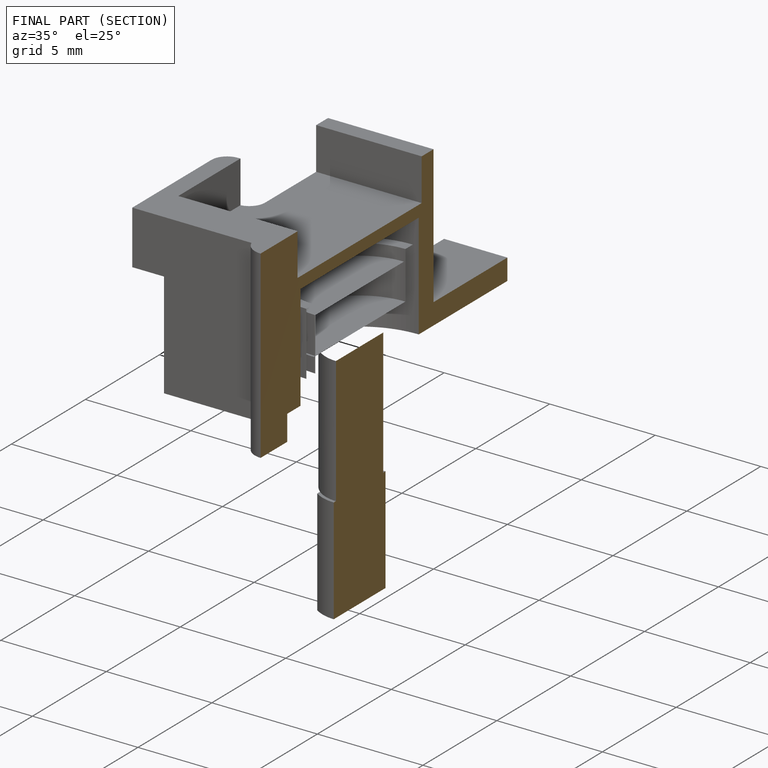
[diagram: finished part — half-section view (interior)]
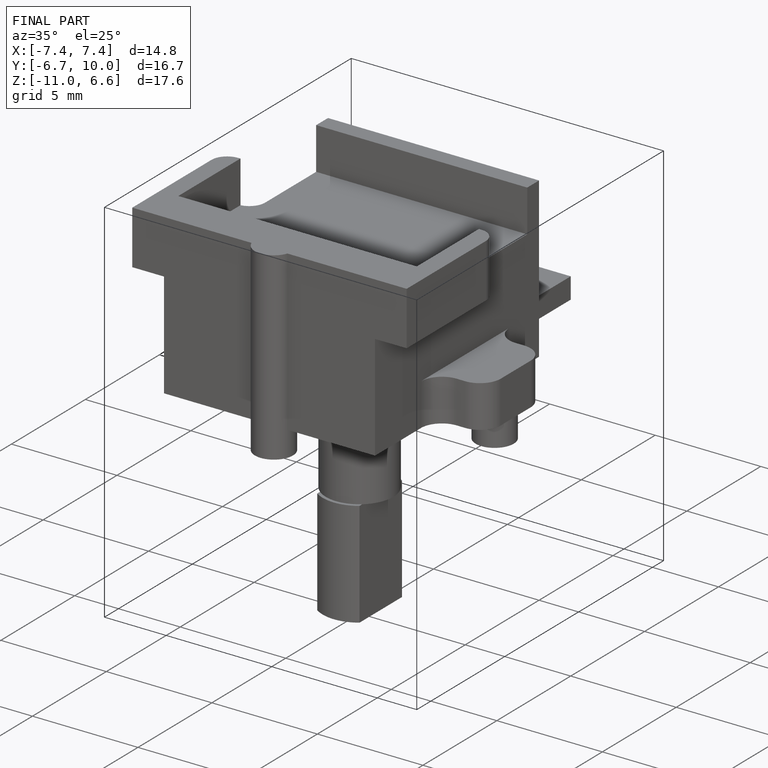
[diagram: finished part — iso view with bounding-box wireframe]
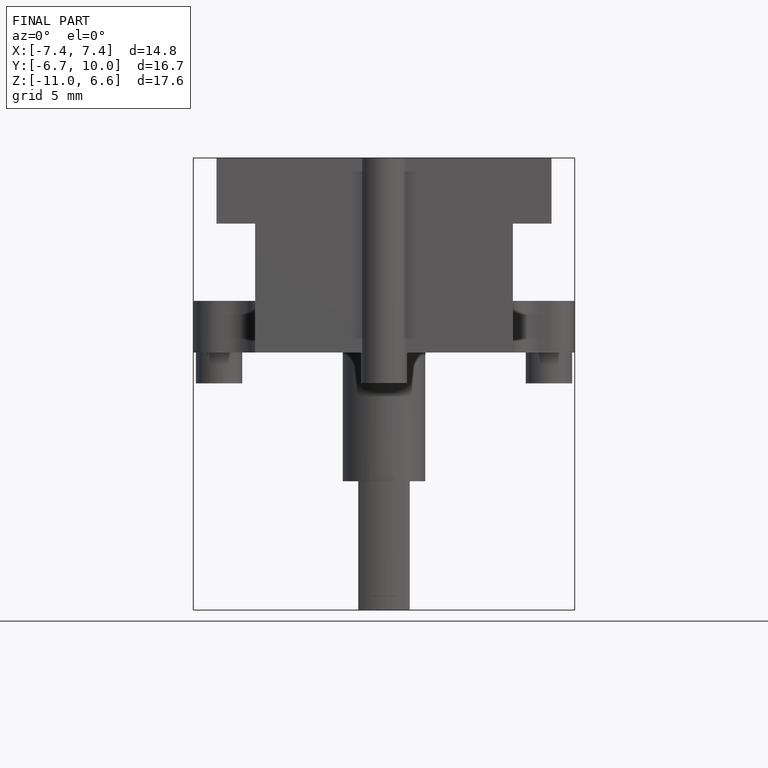
[diagram: finished part — front view with bounding-box wireframe]
